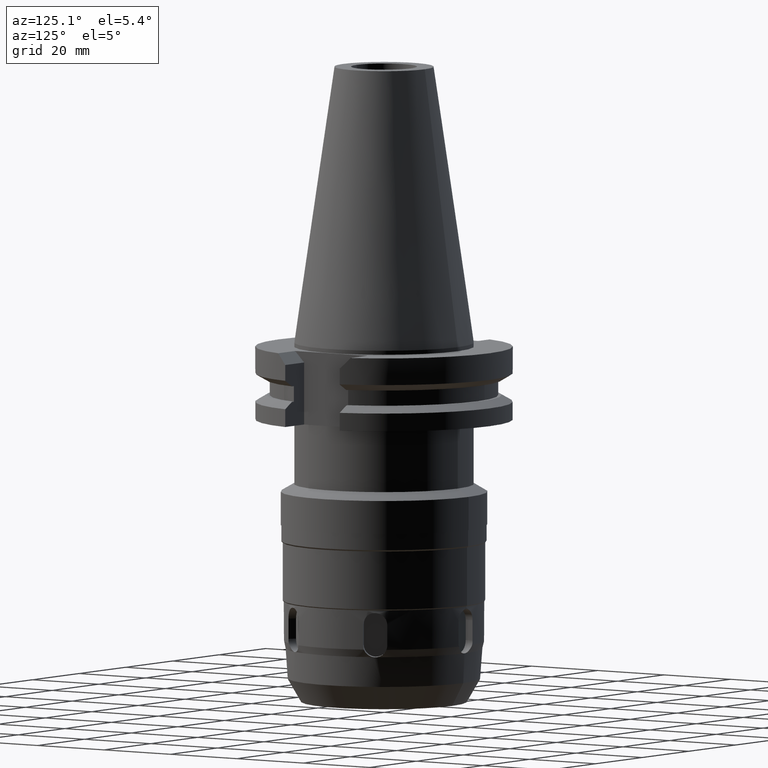
[diagram: clean part render]
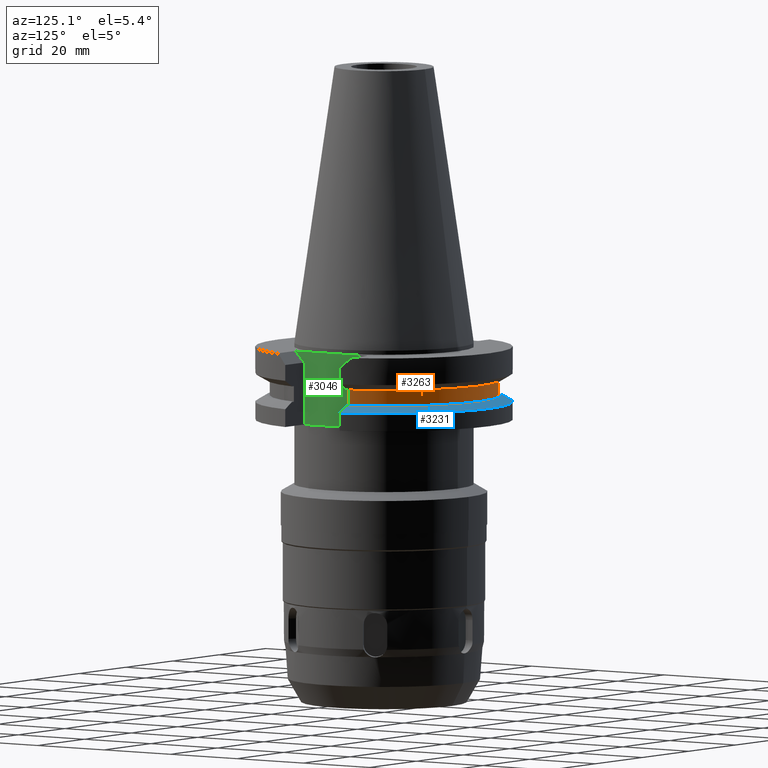
[diagram: same view with three faces highlighted in distinct colors, each labeled with its STEP entity id]
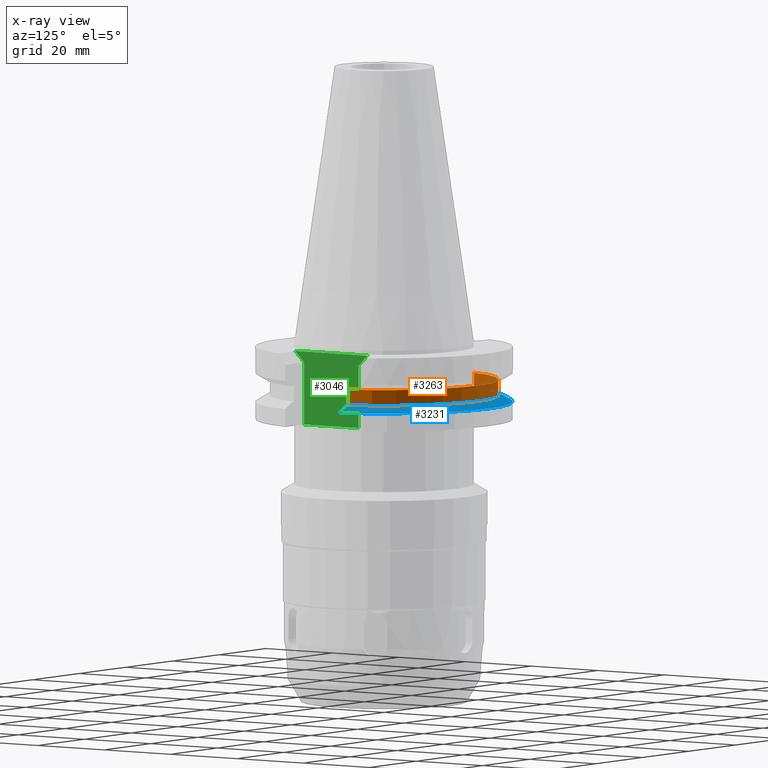
[diagram: x-ray of the same camera — body ghosted, the three highlighted faces saturated]
A machine part, auxiliary view with three faces highlighted in distinct colors.
The next image is the same camera in x-ray (body ghosted, the three faces saturated) — at least one of them is partly hidden behind the body in this view.
Their STEP definitions:

[orange] entity #3263 — the highlighted cylindrical surface (partial cylindrical patch) has radius 28.18 mm, axis along (0, 0, -1).
#453=CARTESIAN_POINT('',(0.E0,2.156694861808E-14,-1.305E1));
#454=DIRECTION('',(0.E0,0.E0,1.E0));
#455=DIRECTION('',(9.568350128908E-1,2.906316536551E-1,0.E0));
#456=AXIS2_PLACEMENT_3D('',#453,#454,#455);
#461=CARTESIAN_POINT('',(0.E0,2.156694861808E-14,-1.305E1));
#462=DIRECTION('',(0.E0,0.E0,1.E0));
#463=DIRECTION('',(0.E0,1.E0,0.E0));
#464=AXIS2_PLACEMENT_3D('',#461,#462,#463);
#492=DIRECTION('',(0.E0,0.E0,1.E0));
#493=VECTOR('',#492,3.84E0);
#494=CARTESIAN_POINT('',(2.696361066326E1,8.19E0,-1.305E1));
#495=LINE('',#494,#493);
#499=DIRECTION('',(0.E0,0.E0,-1.E0));
#500=VECTOR('',#499,3.84E0);
#501=CARTESIAN_POINT('',(-2.696361066326E1,8.19E0,-9.21E0));
#502=LINE('',#501,#500);
#529=CARTESIAN_POINT('',(0.E0,2.156694861808E-14,-9.21E0));
#530=DIRECTION('',(0.E0,0.E0,-1.E0));
#531=DIRECTION('',(-9.568350128908E-1,2.906316536551E-1,0.E0));
#532=AXIS2_PLACEMENT_3D('',#529,#530,#531);
#537=CARTESIAN_POINT('',(0.E0,2.156694861808E-14,-9.21E0));
#538=DIRECTION('',(0.E0,0.E0,-1.E0));
#539=DIRECTION('',(0.E0,1.E0,0.E0));
#540=AXIS2_PLACEMENT_3D('',#537,#538,#539);
#2826=CARTESIAN_POINT('',(-2.696361066326E1,8.19E0,-1.305E1));
#2827=VERTEX_POINT('',#2826);
#2828=CARTESIAN_POINT('',(-2.696361066326E1,8.19E0,-9.21E0));
#2829=VERTEX_POINT('',#2828);
#2842=CARTESIAN_POINT('',(2.696361066326E1,8.19E0,-1.305E1));
#2843=VERTEX_POINT('',#2842);
#2844=CARTESIAN_POINT('',(-6.305166448056E-14,2.818E1,-1.305E1));
#2845=VERTEX_POINT('',#2844);
#2848=CARTESIAN_POINT('',(2.696361066326E1,8.19E0,-9.21E0));
#2849=VERTEX_POINT('',#2848);
#2850=CARTESIAN_POINT('',(4.351173924716E-14,2.818E1,-9.21E0));
#2851=VERTEX_POINT('',#2850);
#3248=CARTESIAN_POINT('',(0.E0,2.156694861808E-14,7.61075E1));
#3249=DIRECTION('',(0.E0,0.E0,-1.E0));
#3250=DIRECTION('',(0.E0,-1.E0,0.E0));
#3251=AXIS2_PLACEMENT_3D('',#3248,#3249,#3250);
#3252=CYLINDRICAL_SURFACE('',#3251,2.818E1);
#3253=ORIENTED_EDGE('',*,*,#3095,.T.);
#3255=ORIENTED_EDGE('',*,*,#3254,.F.);
#3257=ORIENTED_EDGE('',*,*,#3256,.F.);
#3258=ORIENTED_EDGE('',*,*,#3188,.T.);
#3259=ORIENTED_EDGE('',*,*,#3240,.F.);
#3260=ORIENTED_EDGE('',*,*,#3238,.F.);
#3261=EDGE_LOOP('',(#3253,#3255,#3257,#3258,#3259,#3260));
#3262=FACE_OUTER_BOUND('',#3261,.F.);
#457=CIRCLE('',#456,2.818E1);
#465=CIRCLE('',#464,2.818E1);
#533=CIRCLE('',#532,2.818E1);
#541=CIRCLE('',#540,2.818E1);
#3095=EDGE_CURVE('',#2843,#2849,#495,.T.);
#3188=EDGE_CURVE('',#2829,#2827,#502,.T.);
#3238=EDGE_CURVE('',#2843,#2845,#457,.T.);
#3240=EDGE_CURVE('',#2845,#2827,#465,.T.);
#3254=EDGE_CURVE('',#2851,#2849,#541,.T.);
#3256=EDGE_CURVE('',#2829,#2851,#533,.T.);
#3263=ADVANCED_FACE('',(#3262),#3252,.T.);

[blue] entity #3231 — the highlighted conical surface has half-angle 60 deg.
#417=CARTESIAN_POINT('',(3.067550165919E1,8.189999875296E0,-1.465183552769E1));
#418=CARTESIAN_POINT('',(3.034775205515E1,8.189999875296E0,-1.446901309082E1));
#419=CARTESIAN_POINT('',(2.969731250670E1,8.189999973632E0,-1.410658119140E1));
#420=CARTESIAN_POINT('',(2.873682020959E1,8.190000279342E0,-1.357261758479E1));
#421=CARTESIAN_POINT('',(2.810658348929E1,8.189999365780E0,-1.322311331368E1));
#422=CARTESIAN_POINT('',(2.779399588629E1,8.189999365780E0,-1.305E1));
#427=CARTESIAN_POINT('',(-2.779398348588E1,8.190000189106E0,-1.305E1));
#428=CARTESIAN_POINT('',(-2.810658330585E1,8.190000189106E0,-1.322312007499E1));
#429=CARTESIAN_POINT('',(-2.873681505180E1,8.189999991915E0,-1.357261190802E1));
#430=CARTESIAN_POINT('',(-2.969731086283E1,8.189999744638E0,-1.410657763636E1));
#431=CARTESIAN_POINT('',(-3.034774597299E1,8.190000601235E0,-1.446901629684E1));
#432=CARTESIAN_POINT('',(-3.067550146537E1,8.190000601235E0,-1.465184201483E1));
#437=CARTESIAN_POINT('',(0.E0,1.055021971276E-14,-1.465183664206E1));
#438=DIRECTION('',(0.E0,0.E0,-1.E0));
#439=DIRECTION('',(-9.661575315241E-1,2.579527559055E-1,0.E0));
#440=AXIS2_PLACEMENT_3D('',#437,#438,#439);
#445=CARTESIAN_POINT('',(0.E0,1.055021971276E-14,-1.465183664206E1));
#446=DIRECTION('',(0.E0,0.E0,-1.E0));
#447=DIRECTION('',(0.E0,1.E0,0.E0));
#448=AXIS2_PLACEMENT_3D('',#445,#446,#447);
#476=CARTESIAN_POINT('',(0.E0,1.055021971276E-14,-1.305E1));
#477=DIRECTION('',(0.E0,0.E0,-1.E0));
#478=DIRECTION('',(-9.592224574149E-1,2.826522195047E-1,0.E0));
#479=AXIS2_PLACEMENT_3D('',#476,#477,#478);
#484=CARTESIAN_POINT('',(0.E0,1.055021971276E-14,-1.305E1));
#485=DIRECTION('',(0.E0,0.E0,-1.E0));
#486=DIRECTION('',(0.E0,1.E0,0.E0));
#487=AXIS2_PLACEMENT_3D('',#484,#485,#486);
#2796=CARTESIAN_POINT('',(3.067550165919E1,8.189999875296E0,-1.465183552769E1));
#2797=VERTEX_POINT('',#2796);
#2798=CARTESIAN_POINT('',(-3.067550162589E1,8.190000000001E0,
-1.465183664206E1));
#2799=CARTESIAN_POINT('',(0.E0,3.175E1,-1.465183664206E1));
#2800=VERTEX_POINT('',#2798);
#2801=VERTEX_POINT('',#2799);
#2825=VERTEX_POINT('',#427);
#2837=VERTEX_POINT('',#422);
#2838=CARTESIAN_POINT('',(0.E0,2.897553755053E1,-1.305E1));
#2839=VERTEX_POINT('',#2838);
#3216=CARTESIAN_POINT('',(0.E0,1.055021971276E-14,-1.385091832103E1));
#3217=DIRECTION('',(0.E0,0.E0,-1.E0));
#3218=DIRECTION('',(0.E0,-1.E0,0.E0));
#3219=AXIS2_PLACEMENT_3D('',#3216,#3217,#3218);
#3220=CONICAL_SURFACE('',#3219,3.036276877527E1,6.E1);
#3221=ORIENTED_EDGE('',*,*,#3099,.T.);
#3223=ORIENTED_EDGE('',*,*,#3222,.F.);
#3225=ORIENTED_EDGE('',*,*,#3224,.F.);
#3226=ORIENTED_EDGE('',*,*,#3184,.T.);
#3227=ORIENTED_EDGE('',*,*,#3208,.T.);
#3228=ORIENTED_EDGE('',*,*,#3206,.T.);
#3229=EDGE_LOOP('',(#3221,#3223,#3225,#3226,#3227,#3228));
#3230=FACE_OUTER_BOUND('',#3229,.F.);
#423=B_SPLINE_CURVE_WITH_KNOTS('',3,(#417,#418,#419,#420,#421,#422),
.UNSPECIFIED.,.F.,.F.,(4,1,1,4),(0.E0,3.333333333333E-1,6.666666666667E-1,1.E0),
.UNSPECIFIED.);
#433=B_SPLINE_CURVE_WITH_KNOTS('',3,(#427,#428,#429,#430,#431,#432),
.UNSPECIFIED.,.F.,.F.,(4,1,1,4),(0.E0,3.333333333333E-1,6.666666666667E-1,1.E0),
.UNSPECIFIED.);
#441=CIRCLE('',#440,3.175E1);
#449=CIRCLE('',#448,3.175E1);
#480=CIRCLE('',#479,2.897553755053E1);
#488=CIRCLE('',#487,2.897553755053E1);
#3099=EDGE_CURVE('',#2797,#2837,#423,.T.);
#3184=EDGE_CURVE('',#2825,#2800,#433,.T.);
#3206=EDGE_CURVE('',#2801,#2797,#449,.T.);
#3208=EDGE_CURVE('',#2800,#2801,#441,.T.);
#3222=EDGE_CURVE('',#2839,#2837,#488,.T.);
#3224=EDGE_CURVE('',#2825,#2839,#480,.T.);
#3231=ADVANCED_FACE('',(#3230),#3220,.T.);

[green] entity #3046 — the highlighted planar face has unit normal (1, 0, 0).
#94=DIRECTION('',(0.E0,-1.E0,0.E0));
#95=VECTOR('',#94,2.178E1);
#96=CARTESIAN_POINT('',(2.257E1,1.089E1,-1.E0));
#97=LINE('',#96,#95);
#163=DIRECTION('',(0.E0,-1.E0,0.E0));
#164=VECTOR('',#163,1.638E1);
#165=CARTESIAN_POINT('',(2.257E1,8.19E0,-1.905E1));
#166=LINE('',#165,#164);
#170=DIRECTION('',(0.E0,0.E0,1.E0));
#171=VECTOR('',#170,1.535E1);
#172=CARTESIAN_POINT('',(2.257E1,-8.19E0,-1.905E1));
#173=LINE('',#172,#171);
#177=DIRECTION('',(0.E0,-7.071067811865E-1,7.071067811865E-1));
#178=VECTOR('',#177,3.818376618407E0);
#179=CARTESIAN_POINT('',(2.257E1,-8.19E0,-3.7E0));
#180=LINE('',#179,#178);
#184=DIRECTION('',(0.E0,-7.071067811865E-1,-7.071067811865E-1));
#185=VECTOR('',#184,3.818376618407E0);
#186=CARTESIAN_POINT('',(2.257E1,1.089E1,-1.E0));
#187=LINE('',#186,#185);
#191=DIRECTION('',(0.E0,0.E0,-1.E0));
#192=VECTOR('',#191,1.535E1);
#193=CARTESIAN_POINT('',(2.257E1,8.19E0,-3.7E0));
#194=LINE('',#193,#192);
#2752=CARTESIAN_POINT('',(2.257E1,8.19E0,-1.905E1));
#2753=CARTESIAN_POINT('',(2.257E1,-8.19E0,-1.905E1));
#2754=VERTEX_POINT('',#2752);
#2755=VERTEX_POINT('',#2753);
#2772=CARTESIAN_POINT('',(2.257E1,-8.19E0,-3.7E0));
#2773=VERTEX_POINT('',#2772);
#2774=CARTESIAN_POINT('',(2.257E1,-1.089E1,-1.E0));
#2775=VERTEX_POINT('',#2774);
#2776=CARTESIAN_POINT('',(2.257E1,1.089E1,-1.E0));
#2777=VERTEX_POINT('',#2776);
#2778=CARTESIAN_POINT('',(2.257E1,8.19E0,-3.7E0));
#2779=VERTEX_POINT('',#2778);
#3028=CARTESIAN_POINT('',(2.257E1,0.E0,0.E0));
#3029=DIRECTION('',(1.E0,0.E0,0.E0));
#3030=DIRECTION('',(0.E0,0.E0,-1.E0));
#3031=AXIS2_PLACEMENT_3D('',#3028,#3029,#3030);
#3032=PLANE('',#3031);
#3034=ORIENTED_EDGE('',*,*,#3033,.T.);
#3036=ORIENTED_EDGE('',*,*,#3035,.T.);
#3038=ORIENTED_EDGE('',*,*,#3037,.T.);
#3039=ORIENTED_EDGE('',*,*,#3001,.F.);
#3041=ORIENTED_EDGE('',*,*,#3040,.T.);
#3043=ORIENTED_EDGE('',*,*,#3042,.T.);
#3044=EDGE_LOOP('',(#3034,#3036,#3038,#3039,#3041,#3043));
#3045=FACE_OUTER_BOUND('',#3044,.F.);
#3001=EDGE_CURVE('',#2777,#2775,#97,.T.);
#3033=EDGE_CURVE('',#2754,#2755,#166,.T.);
#3035=EDGE_CURVE('',#2755,#2773,#173,.T.);
#3037=EDGE_CURVE('',#2773,#2775,#180,.T.);
#3040=EDGE_CURVE('',#2777,#2779,#187,.T.);
#3042=EDGE_CURVE('',#2779,#2754,#194,.T.);
#3046=ADVANCED_FACE('',(#3045),#3032,.T.);